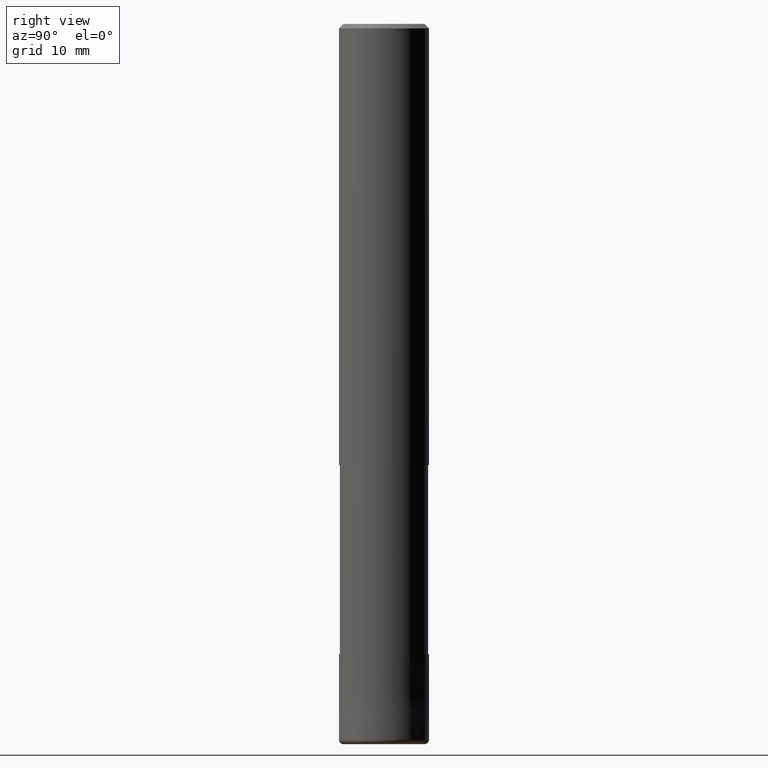
[diagram: clean part render]
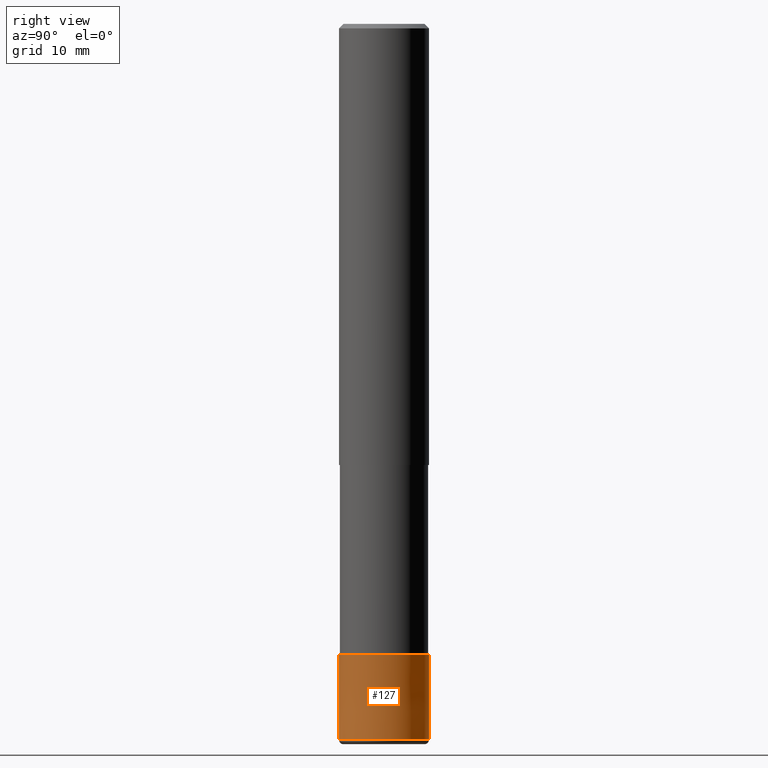
[diagram: same view with one face highlighted and labeled with its STEP entity id]
A machine part, right view. The second image highlights one B-rep face of the part: STEP entity #127.
In plain terms, the highlighted conical surface has half-angle 0.001 deg.
Its self-contained STEP definition (entity closure, byte-faithful):
#127=ADVANCED_FACE('',(#315),#316,.T.);
#139=VERTEX_POINT('',#329);
#183=EDGE_CURVE('',#187,#283,#377,.T.);
#187=VERTEX_POINT('',#381);
#197=EDGE_CURVE('',#283,#139,#392,.T.);
#205=VERTEX_POINT('',#400);
#243=EDGE_CURVE('',#205,#187,#445,.T.);
#277=EDGE_CURVE('',#205,#139,#488,.T.);
#283=VERTEX_POINT('',#494);
#315=FACE_OUTER_BOUND('',#518,.T.);
#316=CONICAL_SURFACE('',#519,4.99995,1.05263157890604E-005);
#329=CARTESIAN_POINT('',(6.1229093084765E-016,-4.9999,-70.0));
#377=CIRCLE('',#601,5.0);
#381=CARTESIAN_POINT('',(0.0,5.0,-79.5));
#392=LINE('',#622,#623);
#400=CARTESIAN_POINT('',(0.0,4.9999,-70.0));
#445=LINE('',#690,#691);
#488=CIRCLE('',#739,4.9999);
#494=CARTESIAN_POINT('',(6.12303176911189E-016,-5.0,-79.5));
#518=EDGE_LOOP('',(#758,#759,#760,#761));
#519=AXIS2_PLACEMENT_3D('',#762,#763,#764);
#601=AXIS2_PLACEMENT_3D('',#845,#846,#847);
#622=CARTESIAN_POINT('',(6.1229705387942E-016,-4.99995,-74.75));
#623=VECTOR('',#859,1.0);
#690=CARTESIAN_POINT('',(-6.1229705387942E-016,4.99995,-74.75));
#691=VECTOR('',#928,1.0);
#739=AXIS2_PLACEMENT_3D('',#992,#993,#994);
#758=ORIENTED_EDGE('',*,*,#243,.F.);
#759=ORIENTED_EDGE('',*,*,#277,.T.);
#760=ORIENTED_EDGE('',*,*,#197,.F.);
#761=ORIENTED_EDGE('',*,*,#183,.F.);
#762=CARTESIAN_POINT('',(0.0,0.0,-74.75));
#763=DIRECTION('',(0.0,-0.0,-1.0));
#764=DIRECTION('',(0.0,1.0,0.0));
#845=CARTESIAN_POINT('',(0.0,0.0,-79.5));
#846=DIRECTION('',(0.0,0.0,-1.0));
#847=DIRECTION('',(0.0,1.0,0.0));
#859=DIRECTION('',(-1.28905931973861E-021,1.0526315788866E-005,0.999999999944598));
#928=DIRECTION('',(-1.28905931973861E-021,1.0526315788866E-005,-0.999999999944598));
#992=CARTESIAN_POINT('',(0.0,0.0,-70.0));
#993=DIRECTION('',(0.0,0.0,-1.0));
#994=DIRECTION('',(0.0,1.0,0.0));